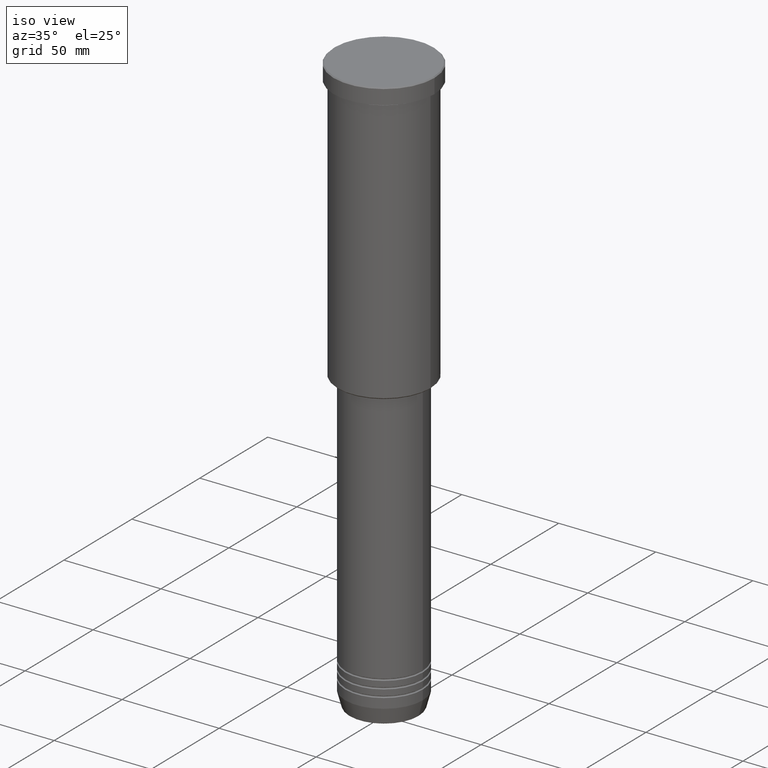
[diagram: clean part render]
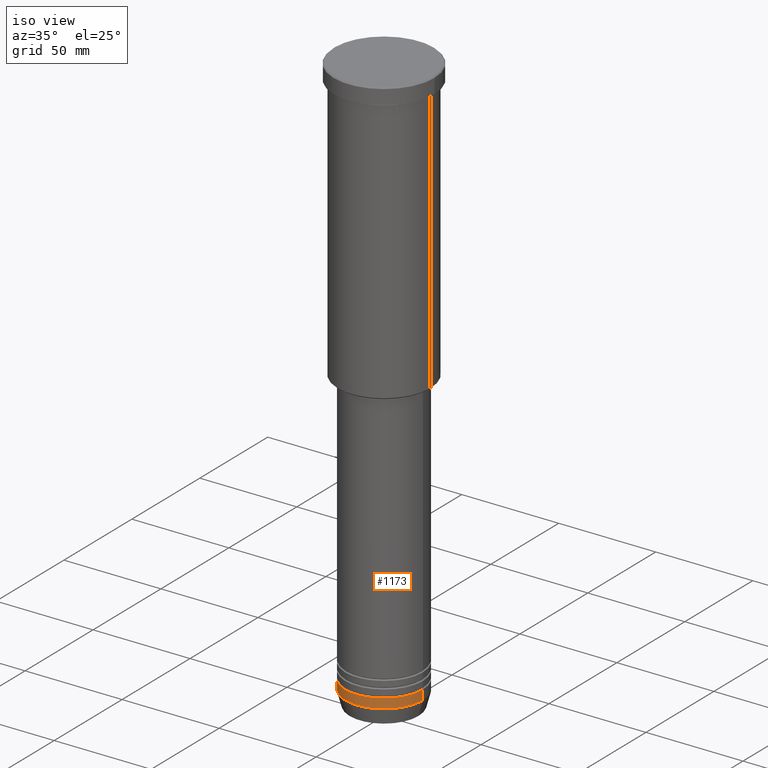
[diagram: same view with one face highlighted and labeled with its STEP entity id]
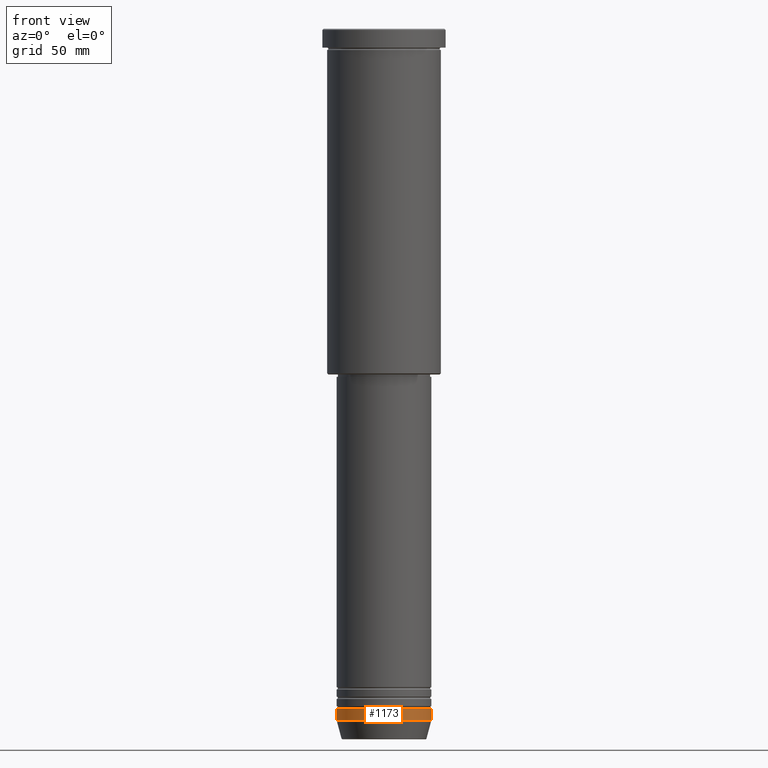
[diagram: same view with one face highlighted and labeled with its STEP entity id]
A machine part, iso view. The second image highlights one B-rep face of the part: STEP entity #1173.
A second angle (front view) of the same face is appended — the face is thin or edge-on in the first view.
In plain terms, the highlighted cylindrical surface (partial cylindrical patch) has radius 20 mm, axis along (-0, -0, 1).
Its self-contained STEP definition (entity closure, byte-faithful):
#15 = CYLINDRICAL_SURFACE ( 'NONE', #110, 20.00000000000000355 ) ;
#57 = VERTEX_POINT ( 'NONE', #806 ) ;
#82 = EDGE_LOOP ( 'NONE', ( #988, #266, #953, #539 ) ) ;
#99 = DIRECTION ( 'NONE',  ( 1.000000000000000000, 0.000000000000000000, 0.000000000000000000 ) ) ;
#110 = AXIS2_PLACEMENT_3D ( 'NONE', #609, #869, #954 ) ;
#189 = CARTESIAN_POINT ( 'NONE',  ( 0.000000000000000000, 0.000000000000000000, -292.0000000000000000 ) ) ;
#199 = VERTEX_POINT ( 'NONE', #269 ) ;
#266 = ORIENTED_EDGE ( 'NONE', *, *, #1156, .T. ) ;
#269 = CARTESIAN_POINT ( 'NONE',  ( 20.00000000000000000, 0.000000000000000000, -287.0000000000000000 ) ) ;
#279 = CARTESIAN_POINT ( 'NONE',  ( 0.000000000000000000, 0.000000000000000000, -287.0000000000000000 ) ) ;
#286 = DIRECTION ( 'NONE',  ( 1.000000000000000000, 0.000000000000000000, 0.000000000000000000 ) ) ;
#316 = AXIS2_PLACEMENT_3D ( 'NONE', #279, #469, #286 ) ;
#341 = CARTESIAN_POINT ( 'NONE',  ( -20.00000000000000355, 2.449293598294706907E-15, 0.000000000000000000 ) ) ;
#394 = VECTOR ( 'NONE', #883, 1000.000000000000000 ) ;
#469 = DIRECTION ( 'NONE',  ( -0.000000000000000000, -0.000000000000000000, 1.000000000000000000 ) ) ;
#539 = ORIENTED_EDGE ( 'NONE', *, *, #1117, .F. ) ;
#568 = DIRECTION ( 'NONE',  ( -0.000000000000000000, -0.000000000000000000, 1.000000000000000000 ) ) ;
#574 = VERTEX_POINT ( 'NONE', #903 ) ;
#609 = CARTESIAN_POINT ( 'NONE',  ( 0.000000000000000000, 0.000000000000000000, 0.000000000000000000 ) ) ;
#626 = LINE ( 'NONE', #341, #394 ) ;
#650 = LINE ( 'NONE', #813, #710 ) ;
#660 = EDGE_CURVE ( 'NONE', #922, #57, #626, .T. ) ;
#664 = FACE_OUTER_BOUND ( 'NONE', #82, .T. ) ;
#710 = VECTOR ( 'NONE', #994, 1000.000000000000000 ) ;
#806 = CARTESIAN_POINT ( 'NONE',  ( -20.00000000000000000, 2.449293598294706513E-15, -287.0000000000000000 ) ) ;
#813 = CARTESIAN_POINT ( 'NONE',  ( 20.00000000000000355, 0.000000000000000000, 0.000000000000000000 ) ) ;
#824 = CARTESIAN_POINT ( 'NONE',  ( -20.00000000000000355, 2.449293598294706907E-15, -292.0000000000000000 ) ) ;
#845 = CIRCLE ( 'NONE', #973, 20.00000000000000355 ) ;
#869 = DIRECTION ( 'NONE',  ( -0.000000000000000000, -0.000000000000000000, 1.000000000000000000 ) ) ;
#883 = DIRECTION ( 'NONE',  ( -0.000000000000000000, -0.000000000000000000, 1.000000000000000000 ) ) ;
#903 = CARTESIAN_POINT ( 'NONE',  ( 20.00000000000000355, 0.000000000000000000, -292.0000000000000000 ) ) ;
#922 = VERTEX_POINT ( 'NONE', #824 ) ;
#947 = EDGE_CURVE ( 'NONE', #574, #199, #650, .T. ) ;
#953 = ORIENTED_EDGE ( 'NONE', *, *, #947, .T. ) ;
#954 = DIRECTION ( 'NONE',  ( 1.000000000000000000, 0.000000000000000000, 0.000000000000000000 ) ) ;
#973 = AXIS2_PLACEMENT_3D ( 'NONE', #189, #568, #99 ) ;
#988 = ORIENTED_EDGE ( 'NONE', *, *, #660, .F. ) ;
#993 = CIRCLE ( 'NONE', #316, 20.00000000000000000 ) ;
#994 = DIRECTION ( 'NONE',  ( -0.000000000000000000, -0.000000000000000000, 1.000000000000000000 ) ) ;
#1117 = EDGE_CURVE ( 'NONE', #57, #199, #993, .T. ) ;
#1156 = EDGE_CURVE ( 'NONE', #922, #574, #845, .T. ) ;
#1173 = ADVANCED_FACE ( 'NONE', ( #664 ), #15, .T. ) ;